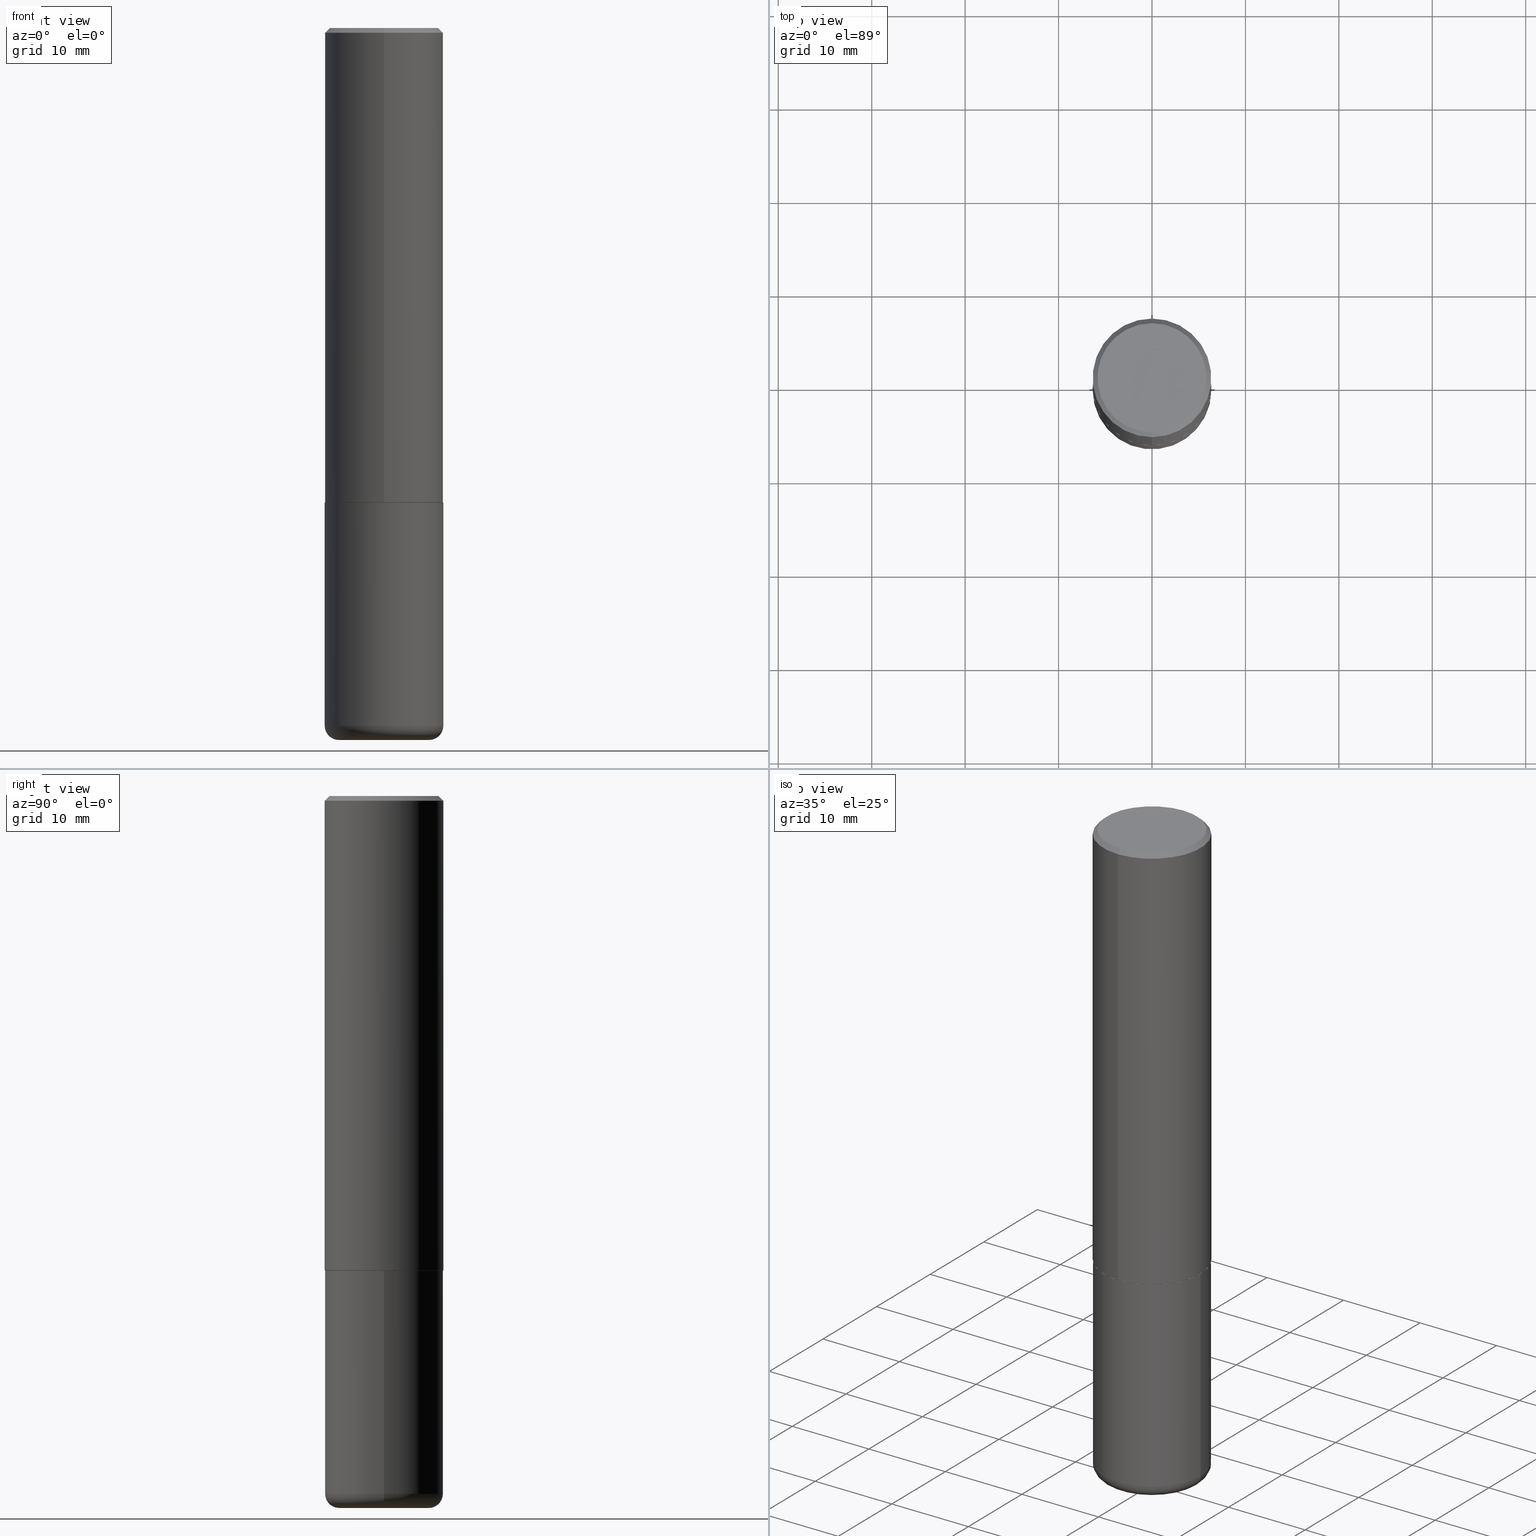
[diagram: canonical four-view strip — front | top / right | iso, engineering-drawing reading convention]
A machine part, canonical four-view strip (front | top / right | iso — engineering-drawing reading convention). The complete STEP part file that produces these views, byte-faithful:
ISO-10303-21;
HEADER;
FILE_DESCRIPTION (( 'STEP AP203' ),
    '1' );
FILE_NAME ('38268.STEP',
    '2024-03-02T20:14:29',
    ( '' ),
    ( '' ),
    'SwSTEP 2.0',
    'SolidWorks 2023',
    '' );
FILE_SCHEMA (( 'CONFIG_CONTROL_DESIGN' ));
ENDSEC;

DATA;
#1 = CYLINDRICAL_SURFACE ( 'NONE', #135, 0.2500000000000001110 ) ;
#2 = ORIENTED_EDGE ( 'NONE', *, *, #349, .F. ) ;
#3 = CARTESIAN_POINT ( 'NONE',  ( -1.745740669421567467E-15, -0.2500000000000001110, 8.732840426224690034E-16 ) ) ;
#4 = ADVANCED_BREP_SHAPE_REPRESENTATION ( '38268', ( #227, #372, #272 ), #322 ) ;
#5 = AXIS2_PLACEMENT_3D ( 'NONE', #292, #318, #284 ) ;
#6 = CARTESIAN_POINT ( 'NONE',  ( -1.646519519465166968E-15, -0.2299999999999999822, 7.995334180013181207E-16 ) ) ;
#7 = TOROIDAL_SURFACE ( 'NONE', #170, 0.1899999999999999745, 0.05999999999999968553 ) ;
#8 = EDGE_CURVE ( 'NONE', #373, #332, #209, .T. ) ;
#9 = COORDINATED_UNIVERSAL_TIME_OFFSET ( 5, 0, .BEHIND. ) ;
#10 = DIRECTION ( 'NONE',  ( 2.444313243422440590E-29, -3.493136170489874041E-15, -1.000000000000000000 ) ) ;
#11 = DIRECTION ( 'NONE',  ( 1.000000000000000000, -6.982962677686266711E-15, 0.000000000000000000 ) ) ;
#12 = DATE_TIME_ROLE ( 'creation_date' ) ;
#13 = DATE_TIME_ROLE ( 'classification_date' ) ;
#14 = AXIS2_PLACEMENT_3D ( 'NONE', #260, #281, #359 ) ;
#15 = CIRCLE ( 'NONE', #191, 0.1899999999999999745 ) ;
#16 = EDGE_LOOP ( 'NONE', ( #126, #335, #345, #102 ) ) ;
#17 = LINE ( 'NONE', #112, #90 ) ;
#18 = CARTESIAN_POINT ( 'NONE',  ( -0.2500000000000000000, 1.776356839400250465E-15, -1.229733772563726445E-29 ) ) ;
#19 = ORIENTED_EDGE ( 'NONE', *, *, #107, .F. ) ;
#20 = EDGE_LOOP ( 'NONE', ( #125, #78 ) ) ;
#21 = DIRECTION ( 'NONE',  ( 1.000000000000000000, -6.982962677686266711E-15, 4.876176775795935793E-29 ) ) ;
#22 = CONICAL_SURFACE ( 'NONE', #95, 0.2489999999999999991, 0.7853981633974141952 ) ;
#23 = ORIENTED_EDGE ( 'NONE', *, *, #375, .F. ) ;
#24 = DIRECTION ( 'NONE',  ( -2.445468806185136597E-29, 3.491481338843145583E-15, 1.000000000000000000 ) ) ;
#25 = APPLICATION_PROTOCOL_DEFINITION ( 'international standard', 'config_control_design', 1994, #42 ) ;
#26 = APPROVAL ( #400, 'UNSPECIFIED' ) ;
#27 = ORIENTED_EDGE ( 'NONE', *, *, #418, .T. ) ;
#28 = DIRECTION ( 'NONE',  ( 1.000000000000000000, -6.982962677686273021E-15, 0.000000000000000000 ) ) ;
#29 = DIRECTION ( 'NONE',  ( -2.444313243422440590E-29, 3.493136170489874041E-15, 1.000000000000000000 ) ) ;
#30 = CIRCLE ( 'NONE', #408, 0.2500000000000000000 ) ;
#31 = ORIENTED_EDGE ( 'NONE', *, *, #99, .F. ) ;
#32 = PLANE ( 'NONE',  #241 ) ;
#33 = DIRECTION ( 'NONE',  ( -6.982962677686266711E-15, -1.000000000000000000, 3.493136170489874436E-15 ) ) ;
#34 = EDGE_CURVE ( 'NONE', #225, #88, #393, .T. ) ;
#35 = ORGANIZATION ( 'UNSPECIFIED', 'UNSPECIFIED', '' ) ;
#36 = DIRECTION ( 'NONE',  ( 5.024295867787889629E-15, 0.7071067811865257013, 0.7071067811865691111 ) ) ;
#37 = VERTEX_POINT ( 'NONE', #203 ) ;
#38 = CYLINDRICAL_SURFACE ( 'NONE', #206, 0.2500000000000001110 ) ;
#39 = DIRECTION ( 'NONE',  ( -2.444313243422440590E-29, 3.493136170489874041E-15, 1.000000000000000000 ) ) ;
#40 = EDGE_CURVE ( 'NONE', #84, #383, #15, .T. ) ;
#41 = APPROVAL_ROLE ( '' ) ;
#42 = APPLICATION_CONTEXT ( 'configuration controlled 3d designs of mechanical parts and assemblies' ) ;
#43 = APPLICATION_PROTOCOL_DEFINITION ( 'international standard', 'config_control_design', 1994, #105 ) ;
#44 = DIRECTION ( 'NONE',  ( -2.444313243422440590E-29, 3.493136170489874041E-15, 1.000000000000000000 ) ) ;
#45 = PERSON_AND_ORGANIZATION_ROLE ( 'creator' ) ;
#46 = LINE ( 'NONE', #18, #376 ) ;
#47 = SECURITY_CLASSIFICATION_LEVEL ( 'unclassified' ) ;
#48 = CARTESIAN_POINT ( 'NONE',  ( 7.189678290184301639E-29, -1.026495513619884961E-14, -2.940000000000000391 ) ) ;
#49 = EDGE_LOOP ( 'NONE', ( #403, #378, #254, #77 ) ) ;
#50 = FACE_OUTER_BOUND ( 'NONE', #215, .T. ) ;
#51 = ADVANCED_FACE ( 'NONE', ( #238 ), #7, .T. ) ;
#52 = DIRECTION ( 'NONE',  ( 1.000000000000000000, -6.982962677686265133E-15, 4.883557194083112340E-29 ) ) ;
#53 = VECTOR ( 'NONE', #279, 39.37007874015748143 ) ;
#54 = EDGE_LOOP ( 'NONE', ( #211, #187, #161, #2 ) ) ;
#55 = EDGE_LOOP ( 'NONE', ( #334, #57, #402, #409 ) ) ;
#56 = DIRECTION ( 'NONE',  ( -6.982962677686265922E-15, -1.000000000000000000, 3.493136170489874041E-15 ) ) ;
#57 = ORIENTED_EDGE ( 'NONE', *, *, #40, .T. ) ;
#58 = CARTESIAN_POINT ( 'NONE',  ( 4.888626486844882862E-29, -6.986272340979750449E-15, -2.000000000000000444 ) ) ;
#59 = ADVANCED_FACE ( 'NONE', ( #182 ), #271, .T. ) ;
#60 = ORIENTED_EDGE ( 'NONE', *, *, #306, .F. ) ;
#61 = DIRECTION ( 'NONE',  ( -6.982962677686266711E-15, -1.000000000000000000, 3.491481338843145583E-15 ) ) ;
#62 = AXIS2_PLACEMENT_3D ( 'NONE', #326, #68, #319 ) ;
#63 = CARTESIAN_POINT ( 'NONE',  ( 4.890937612370273754E-29, -6.982962677686291954E-15, -2.000000000000000444 ) ) ;
#64 = ORIENTED_EDGE ( 'NONE', *, *, #349, .T. ) ;
#65 = APPROVAL ( #116, 'UNSPECIFIED' ) ;
#66 = LINE ( 'NONE', #228, #293 ) ;
#67 = ORIENTED_EDGE ( 'NONE', *, *, #331, .F. ) ;
#68 = DIRECTION ( 'NONE',  ( 7.105427357601001859E-15, 1.000000000000000000, -3.491481338843145583E-15 ) ) ;
#69 = MECHANICAL_CONTEXT ( 'NONE', #42, 'mechanical' ) ;
#70 = EDGE_CURVE ( 'NONE', #305, #198, #30, .T. ) ;
#71 =( NAMED_UNIT ( * ) PLANE_ANGLE_UNIT ( ) SI_UNIT ( $, .RADIAN. ) );
#72 = DIRECTION ( 'NONE',  ( -2.445468806185136597E-29, 3.491481338843145583E-15, 1.000000000000000000 ) ) ;
#73 = CARTESIAN_POINT ( 'NONE',  ( 4.888626486844882862E-29, -6.986272340979750449E-15, -2.000000000000000444 ) ) ;
#74 = VECTOR ( 'NONE', #139, 39.37007874015748143 ) ;
#75 = PERSON_AND_ORGANIZATION_ROLE ( 'design_supplier' ) ;
#76 = ADVANCED_FACE ( 'NONE', ( #109 ), #145, .T. ) ;
#77 = ORIENTED_EDGE ( 'NONE', *, *, #148, .F. ) ;
#78 = ORIENTED_EDGE ( 'NONE', *, *, #40, .F. ) ;
#79 = CALENDAR_DATE ( 2024, 2, 3 ) ;
#80 = DESIGN_CONTEXT ( 'detailed design', #105, 'design' ) ;
#81 = PERSON_AND_ORGANIZATION_ROLE ( 'classification_officer' ) ;
#82 = AXIS2_PLACEMENT_3D ( 'NONE', #283, #387, #344 ) ;
#83 = AXIS2_PLACEMENT_3D ( 'NONE', #384, #324, #328 ) ;
#84 = VERTEX_POINT ( 'NONE', #89 ) ;
#85 = EDGE_CURVE ( 'NONE', #37, #149, #250, .T. ) ;
#86 = CARTESIAN_POINT ( 'NONE',  ( 0.2499999999999998335, -1.201069580562041471E-14, -2.940000000000000391 ) ) ;
#87 = ORIENTED_EDGE ( 'NONE', *, *, #148, .T. ) ;
#88 = VERTEX_POINT ( 'NONE', #86 ) ;
#89 = CARTESIAN_POINT ( 'NONE',  ( -0.1899999999999999745, -8.806505557691924342E-15, -2.999999999999999556 ) ) ;
#90 = VECTOR ( 'NONE', #274, 39.37007874015748143 ) ;
#91 = DIRECTION ( 'NONE',  ( 4.937700262164544887E-15, 0.7071067811865446862, -0.7071067811865503483 ) ) ;
#92 = CARTESIAN_POINT ( 'NONE',  ( -1.715124499442882299E-15, -0.2500000000000000555, -0.01999999999999918163 ) ) ;
#93 = ADVANCED_FACE ( 'NONE', ( #240 ), #269, .T. ) ;
#94 = EDGE_LOOP ( 'NONE', ( #151, #394, #31, #118 ) ) ;
#95 = AXIS2_PLACEMENT_3D ( 'NONE', #73, #141, #320 ) ;
#96 = ORIENTED_EDGE ( 'NONE', *, *, #401, .F. ) ;
#97 = DIRECTION ( 'NONE',  ( -6.982962677686265133E-15, -1.000000000000000000, 3.291383124896702687E-15 ) ) ;
#98 = CARTESIAN_POINT ( 'NONE',  ( 0.000000000000000000, 0.000000000000000000, 0.000000000000000000 ) ) ;
#99 = EDGE_CURVE ( 'NONE', #169, #311, #348, .T. ) ;
#100 = AXIS2_PLACEMENT_3D ( 'NONE', #199, #138, #230 ) ;
#101 = LENGTH_MEASURE_WITH_UNIT ( LENGTH_MEASURE( 0.02539999999999999897 ), #351 );
#102 = ORIENTED_EDGE ( 'NONE', *, *, #70, .F. ) ;
#103 = PERSON_AND_ORGANIZATION ( #193, #35 ) ;
#104 = CALENDAR_DATE ( 2024, 2, 3 ) ;
#105 = APPLICATION_CONTEXT ( 'configuration controlled 3d designs of mechanical parts and assemblies' ) ;
#106 = AXIS2_PLACEMENT_3D ( 'NONE', #226, #195, #365 ) ;
#107 = EDGE_CURVE ( 'NONE', #311, #169, #300, .T. ) ;
#108 = DIRECTION ( 'NONE',  ( -6.982962677686265922E-15, -1.000000000000000000, 3.278217592397112312E-15 ) ) ;
#109 = FACE_OUTER_BOUND ( 'NONE', #55, .T. ) ;
#110 = ORIENTED_EDGE ( 'NONE', *, *, #85, .T. ) ;
#111 = APPROVAL_DATE_TIME ( #142, #65 ) ;
#112 = CARTESIAN_POINT ( 'NONE',  ( 0.2500000000000000000, -1.745740669421566678E-15, 1.219044193948983948E-29 ) ) ;
#113 = FACE_OUTER_BOUND ( 'NONE', #239, .T. ) ;
#114 = CC_DESIGN_PERSON_AND_ORGANIZATION_ASSIGNMENT ( #267, #81, ( #415 ) ) ;
#115 = AXIS2_PLACEMENT_3D ( 'NONE', #253, #29, #56 ) ;
#116 = APPROVAL_STATUS ( 'not_yet_approved' ) ;
#117 = AXIS2_PLACEMENT_3D ( 'NONE', #134, #61, #389 ) ;
#118 = ORIENTED_EDGE ( 'NONE', *, *, #347, .F. ) ;
#119 = CARTESIAN_POINT ( 'NONE',  ( 1.745740669421566875E-15, 0.2499999999999999167, -0.02000000000000093023 ) ) ;
#120 = PLANE ( 'NONE',  #14 ) ;
#121 = CARTESIAN_POINT ( 'NONE',  ( 0.2500000000000000000, -8.728703347107858632E-15, -2.000000000000000444 ) ) ;
#122 = CIRCLE ( 'NONE', #5, 0.2299999999999999822 ) ;
#123 = DIRECTION ( 'NONE',  ( 0.000000000000000000, 0.000000000000000000, 1.000000000000000000 ) ) ;
#124 = EDGE_LOOP ( 'NONE', ( #210, #361 ) ) ;
#125 = ORIENTED_EDGE ( 'NONE', *, *, #395, .F. ) ;
#126 = ORIENTED_EDGE ( 'NONE', *, *, #175, .F. ) ;
#127 = ORIENTED_EDGE ( 'NONE', *, *, #163, .F. ) ;
#128 = DIRECTION ( 'NONE',  ( 2.438088387897960049E-29, -3.491481338843145188E-15, -1.000000000000000000 ) ) ;
#129 = AXIS2_PLACEMENT_3D ( 'NONE', #222, #72, #413 ) ;
#130 = CC_DESIGN_APPROVAL ( #26, ( #415 ) ) ;
#131 = LINE ( 'NONE', #3, #74 ) ;
#132 = CARTESIAN_POINT ( 'NONE',  ( 1.336053039146161825E-28, -1.847555615484388985E-15, -2.999999999999999556 ) ) ;
#133 = EDGE_CURVE ( 'NONE', #88, #198, #17, .T. ) ;
#134 = CARTESIAN_POINT ( 'NONE',  ( 0.1899999999999999745, -1.159171804495923808E-14, -2.940000000000000391 ) ) ;
#135 = AXIS2_PLACEMENT_3D ( 'NONE', #314, #39, #288 ) ;
#136 = DIRECTION ( 'NONE',  ( -2.445468806185136597E-29, 3.491481338843145583E-15, 1.000000000000000000 ) ) ;
#137 = AXIS2_PLACEMENT_3D ( 'NONE', #390, #346, #358 ) ;
#138 = DIRECTION ( 'NONE',  ( -2.444313243422440590E-29, 3.493136170489874041E-15, 1.000000000000000000 ) ) ;
#139 = DIRECTION ( 'NONE',  ( -2.444313243422440590E-29, 3.493136170489874041E-15, 1.000000000000000000 ) ) ;
#140 = PERSON_AND_ORGANIZATION ( #193, #35 ) ;
#141 = DIRECTION ( 'NONE',  ( -2.444313243422440590E-29, 3.493136170489874041E-15, 1.000000000000000000 ) ) ;
#142 = DATE_AND_TIME ( #268, #286 ) ;
#143 = CONICAL_SURFACE ( 'NONE', #202, 0.2500000000000000000, 0.7853981633974477239 ) ;
#144 = COORDINATED_UNIVERSAL_TIME_OFFSET ( 5, 0, .BEHIND. ) ;
#145 = TOROIDAL_SURFACE ( 'NONE', #379, 0.1899999999999999745, 0.05999999999999968553 ) ;
#146 = DIRECTION ( 'NONE',  ( 1.000000000000000000, -6.982962677686266711E-15, 0.000000000000000000 ) ) ;
#147 = APPROVAL_STATUS ( 'not_yet_approved' ) ;
#148 = EDGE_CURVE ( 'NONE', #332, #207, #244, .T. ) ;
#149 = VERTEX_POINT ( 'NONE', #404 ) ;
#150 = ORIENTED_EDGE ( 'NONE', *, *, #133, .F. ) ;
#151 = ORIENTED_EDGE ( 'NONE', *, *, #251, .T. ) ;
#152 = PRODUCT_DEFINITION_FORMATION_WITH_SPECIFIED_SOURCE ( 'ANY', '', #156, .NOT_KNOWN. ) ;
#153 = APPROVAL_PERSON_ORGANIZATION ( #236, #65, #41 ) ;
#154 = ORIENTED_EDGE ( 'NONE', *, *, #336, .F. ) ;
#155 = ORIENTED_EDGE ( 'NONE', *, *, #8, .T. ) ;
#156 = PRODUCT ( '38268', '38268', '', ( #69 ) ) ;
#157 = APPROVAL ( #147, 'UNSPECIFIED' ) ;
#158 = DIRECTION ( 'NONE',  ( -2.444313243422440590E-29, 3.493136170489874041E-15, 1.000000000000000000 ) ) ;
#159 = CIRCLE ( 'NONE', #256, 0.2489999999999999991 ) ;
#160 = CARTESIAN_POINT ( 'NONE',  ( 4.888626486844894878E-31, -6.986272340979767558E-17, -0.02000000000000005593 ) ) ;
#161 = ORIENTED_EDGE ( 'NONE', *, *, #331, .T. ) ;
#162 = DIRECTION ( 'NONE',  ( 1.000000000000000000, -6.982962677686266711E-15, 4.876176775795935793E-29 ) ) ;
#163 = EDGE_CURVE ( 'NONE', #417, #207, #391, .T. ) ;
#164 = CARTESIAN_POINT ( 'NONE',  ( 4.888626486844882862E-29, -6.986272340979750449E-15, -2.000000000000000444 ) ) ;
#165 = DIRECTION ( 'NONE',  ( 6.982962677686265922E-15, 1.000000000000000000, -3.500180241882337261E-15 ) ) ;
#166 = DIRECTION ( 'NONE',  ( -1.000000000000000000, 6.982962677686265922E-15, -4.876176775795935793E-29 ) ) ;
#167 = ADVANCED_FACE ( 'NONE', ( #221 ), #287, .T. ) ;
#168 =( NAMED_UNIT ( * ) SI_UNIT ( $, .STERADIAN. ) SOLID_ANGLE_UNIT ( ) );
#169 = VERTEX_POINT ( 'NONE', #297 ) ;
#170 = AXIS2_PLACEMENT_3D ( 'NONE', #48, #410, #52 ) ;
#171 = AXIS2_PLACEMENT_3D ( 'NONE', #186, #340, #162 ) ;
#172 = CALENDAR_DATE ( 2024, 2, 3 ) ;
#173 = DATE_AND_TIME ( #172, #338 ) ;
#174 = AXIS2_PLACEMENT_3D ( 'NONE', #164, #317, #97 ) ;
#175 = EDGE_CURVE ( 'NONE', #225, #305, #46, .T. ) ;
#176 = APPROVAL_ROLE ( '' ) ;
#177 = UNCERTAINTY_MEASURE_WITH_UNIT (LENGTH_MEASURE( 1.000000000000000082E-05 ), #224, 'distance_accuracy_value', 'NONE');
#178 = CARTESIAN_POINT ( 'NONE',  ( -1.715124499442882299E-15, -0.2500000000000000555, -0.01999999999999918163 ) ) ;
#179 = CYLINDRICAL_SURFACE ( 'NONE', #171, 0.2500000000000000000 ) ;
#180 = CARTESIAN_POINT ( 'NONE',  ( 4.890937612370273754E-29, -6.982962677686291954E-15, -2.000000000000000444 ) ) ;
#181 = CARTESIAN_POINT ( 'NONE',  ( 4.890937612370273754E-29, -6.982962677686291954E-15, -2.000000000000000444 ) ) ;
#182 = FACE_OUTER_BOUND ( 'NONE', #49, .T. ) ;
#183 = CIRCLE ( 'NONE', #117, 0.05999999999999966471 ) ;
#184 = ADVANCED_FACE ( 'NONE', ( #280 ), #143, .T. ) ;
#185 = DIRECTION ( 'NONE',  ( -2.444313243422440590E-29, 3.493136170489874041E-15, 1.000000000000000000 ) ) ;
#186 = CARTESIAN_POINT ( 'NONE',  ( 0.000000000000000000, 0.000000000000000000, 0.000000000000000000 ) ) ;
#187 = ORIENTED_EDGE ( 'NONE', *, *, #107, .T. ) ;
#188 = LINE ( 'NONE', #289, #53 ) ;
#189 = CC_DESIGN_DATE_AND_TIME_ASSIGNMENT ( #264, #12, ( #204 ) ) ;
#190 = LOCAL_TIME ( 15, 14, 29.00000000000000000, #144 ) ;
#191 = AXIS2_PLACEMENT_3D ( 'NONE', #412, #136, #353 ) ;
#192 = EDGE_CURVE ( 'NONE', #332, #373, #122, .T. ) ;
#193 = PERSON ( 'UNSPECIFIED', 'UNSPECIFIED', 'UNSPECIFIED', ('UNSPECIFIED'), ('UNSPECIFIED'), ('UNSPECIFIED') ) ;
#194 = DIRECTION ( 'NONE',  ( -4.937700262164378437E-15, -0.7071067811865208164, 0.7071067811865739960 ) ) ;
#195 = DIRECTION ( 'NONE',  ( 2.444313243422440310E-29, -3.493136170489874041E-15, -1.000000000000000000 ) ) ;
#196 = CARTESIAN_POINT ( 'NONE',  ( 1.776356839400276103E-15, 0.2499999999999933109, -1.999000000000000998 ) ) ;
#197 = DIRECTION ( 'NONE',  ( 1.000000000000000000, 0.000000000000000000, 0.000000000000000000 ) ) ;
#198 = VERTEX_POINT ( 'NONE', #121 ) ;
#199 = CARTESIAN_POINT ( 'NONE',  ( 4.888626486844894878E-31, -6.986272340979767558E-17, -0.02000000000000005593 ) ) ;
#200 = FACE_OUTER_BOUND ( 'NONE', #94, .T. ) ;
#201 = CC_DESIGN_PERSON_AND_ORGANIZATION_ASSIGNMENT ( #360, #75, ( #152 ) ) ;
#202 = AXIS2_PLACEMENT_3D ( 'NONE', #294, #10, #165 ) ;
#203 = CARTESIAN_POINT ( 'NONE',  ( 1.772804125721499659E-15, 0.2489999999999930325, -2.000000000000001332 ) ) ;
#204 = PRODUCT_DEFINITION ( 'UNKNOWN', '', #152, #80 ) ;
#205 = PERSON_AND_ORGANIZATION ( #193, #35 ) ;
#206 = AXIS2_PLACEMENT_3D ( 'NONE', #374, #276, #33 ) ;
#207 = VERTEX_POINT ( 'NONE', #249 ) ;
#208 = APPROVAL_DATE_TIME ( #173, #26 ) ;
#209 = CIRCLE ( 'NONE', #115, 0.2299999999999999822 ) ;
#210 = ORIENTED_EDGE ( 'NONE', *, *, #217, .T. ) ;
#211 = ORIENTED_EDGE ( 'NONE', *, *, #418, .F. ) ;
#212 = ORIENTED_EDGE ( 'NONE', *, *, #175, .T. ) ;
#213 = ADVANCED_FACE ( 'NONE', ( #381 ), #32, .F. ) ;
#214 = VECTOR ( 'NONE', #194, 39.37007874015748854 ) ;
#215 = EDGE_LOOP ( 'NONE', ( #282, #155 ) ) ;
#216 = DIRECTION ( 'NONE',  ( -6.982962677686265133E-15, -1.000000000000000000, 3.291383124896702687E-15 ) ) ;
#217 = EDGE_CURVE ( 'NONE', #198, #305, #329, .T. ) ;
#218 = EDGE_LOOP ( 'NONE', ( #60, #364, #87, #64 ) ) ;
#219 = AXIS2_PLACEMENT_3D ( 'NONE', #303, #406, #21 ) ;
#220 = CARTESIAN_POINT ( 'NONE',  ( -0.2500000000000000000, -6.847602067542319531E-15, -2.000000000000000444 ) ) ;
#221 = FACE_OUTER_BOUND ( 'NONE', #20, .T. ) ;
#222 = CARTESIAN_POINT ( 'NONE',  ( 7.189678290184301639E-29, -1.026495513619884961E-14, -2.940000000000000391 ) ) ;
#223 = AXIS2_PLACEMENT_3D ( 'NONE', #132, #388, #350 ) ;
#224 =( CONVERSION_BASED_UNIT ( 'INCH', #101 ) LENGTH_UNIT ( ) NAMED_UNIT ( #245 ) );
#225 = VERTEX_POINT ( 'NONE', #370 ) ;
#226 = CARTESIAN_POINT ( 'NONE',  ( 1.606081415867841067E-15, 0.2299999999999999822, -8.053652698183474938E-16 ) ) ;
#227 = MANIFOLD_SOLID_BREP ( 'Body-Move/Copy2[1]', #291 ) ;
#228 = CARTESIAN_POINT ( 'NONE',  ( 1.769251412042697971E-15, 0.2489999999999930047, -2.000000000000001332 ) ) ;
#229 = ORIENTED_EDGE ( 'NONE', *, *, #401, .T. ) ;
#230 = DIRECTION ( 'NONE',  ( -6.982962677686265922E-15, -1.000000000000000000, 3.500180241882337261E-15 ) ) ;
#231 = SHAPE_DEFINITION_REPRESENTATION ( #247, #4 ) ;
#232 = VECTOR ( 'NONE', #91, 39.37007874015748143 ) ;
#233 = CC_DESIGN_APPROVAL ( #65, ( #152 ) ) ;
#234 = APPROVAL_ROLE ( '' ) ;
#235 = ADVANCED_FACE ( 'NONE', ( #200 ), #22, .T. ) ;
#236 = PERSON_AND_ORGANIZATION ( #193, #35 ) ;
#237 = ADVANCED_FACE ( 'NONE', ( #352 ), #38, .T. ) ;
#238 = FACE_OUTER_BOUND ( 'NONE', #298, .T. ) ;
#239 = EDGE_LOOP ( 'NONE', ( #342, #312 ) ) ;
#240 = FACE_OUTER_BOUND ( 'NONE', #313, .T. ) ;
#241 = AXIS2_PLACEMENT_3D ( 'NONE', #63, #128, #166 ) ;
#242 = DATE_AND_TIME ( #104, #357 ) ;
#243 = AXIS2_PLACEMENT_3D ( 'NONE', #248, #330, #333 ) ;
#244 = LINE ( 'NONE', #119, #232 ) ;
#245 = DIMENSIONAL_EXPONENTS ( 1.000000000000000000, 0.000000000000000000, 0.000000000000000000, 0.000000000000000000, 0.000000000000000000, 0.000000000000000000, 0.000000000000000000 ) ;
#246 = CC_DESIGN_PERSON_AND_ORGANIZATION_ASSIGNMENT ( #355, #45, ( #152 ) ) ;
#247 = PRODUCT_DEFINITION_SHAPE ( 'NONE', 'NONE',  #204 ) ;
#248 = CARTESIAN_POINT ( 'NONE',  ( 4.888626486844894878E-31, -6.986272340979767558E-17, -0.02000000000000005593 ) ) ;
#249 = CARTESIAN_POINT ( 'NONE',  ( 1.745740669421566875E-15, 0.2499999999999999167, -0.02000000000000093023 ) ) ;
#250 = CIRCLE ( 'NONE', #83, 0.2489999999999999991 ) ;
#251 = EDGE_CURVE ( 'NONE', #149, #37, #159, .T. ) ;
#252 = LINE ( 'NONE', #259, #214 ) ;
#253 = CARTESIAN_POINT ( 'NONE',  ( 9.503248420027907092E-47, -1.358096834866801996E-32, -3.887901211352844228E-18 ) ) ;
#254 = ORIENTED_EDGE ( 'NONE', *, *, #163, .T. ) ;
#255 = DIRECTION ( 'NONE',  ( 1.000000000000000000, -6.982962677686265133E-15, 4.883557194083112340E-29 ) ) ;
#256 = AXIS2_PLACEMENT_3D ( 'NONE', #58, #185, #216 ) ;
#257 = ORIENTED_EDGE ( 'NONE', *, *, #347, .T. ) ;
#258 = CC_DESIGN_PERSON_AND_ORGANIZATION_ASSIGNMENT ( #103, #366, ( #156 ) ) ;
#259 = CARTESIAN_POINT ( 'NONE',  ( -1.738757706743831360E-15, -0.2490000000000069935, -1.999999999999999778 ) ) ;
#260 = CARTESIAN_POINT ( 'NONE',  ( 4.888626486844882862E-29, -6.986272340979750449E-15, -2.000000000000000444 ) ) ;
#261 = LINE ( 'NONE', #178, #399 ) ;
#262 = ADVANCED_FACE ( 'NONE', ( #380 ), #179, .T. ) ;
#263 = CARTESIAN_POINT ( 'NONE',  ( 0.1899999999999999745, -1.180120692528982640E-14, -2.999999999999999556 ) ) ;
#264 = DATE_AND_TIME ( #79, #190 ) ;
#265 = COORDINATED_UNIVERSAL_TIME_OFFSET ( 5, 0, .BEHIND. ) ;
#266 = APPROVAL_PERSON_ORGANIZATION ( #140, #157, #176 ) ;
#267 = PERSON_AND_ORGANIZATION ( #193, #35 ) ;
#268 = CALENDAR_DATE ( 2024, 2, 3 ) ;
#269 = CYLINDRICAL_SURFACE ( 'NONE', #219, 0.2500000000000000000 ) ;
#270 = ADVANCED_FACE ( 'NONE', ( #113 ), #120, .F. ) ;
#271 = CONICAL_SURFACE ( 'NONE', #243, 0.2500000000000000000, 0.7853981633974477239 ) ;
#272 = AXIS2_PLACEMENT_3D ( 'NONE', #98, #123, #197 ) ;
#273 = DIRECTION ( 'NONE',  ( -2.445468806185136597E-29, 3.491481338843145583E-15, 1.000000000000000000 ) ) ;
#274 = DIRECTION ( 'NONE',  ( -2.445468806185136877E-29, 3.491481338843145188E-15, 1.000000000000000000 ) ) ;
#275 = FACE_OUTER_BOUND ( 'NONE', #310, .T. ) ;
#276 = DIRECTION ( 'NONE',  ( -2.444313243422440590E-29, 3.493136170489874041E-15, 1.000000000000000000 ) ) ;
#277 = FACE_OUTER_BOUND ( 'NONE', #54, .T. ) ;
#278 = AXIS2_PLACEMENT_3D ( 'NONE', #181, #398, #11 ) ;
#279 = DIRECTION ( 'NONE',  ( -2.444313243422440590E-29, 3.493136170489874041E-15, 1.000000000000000000 ) ) ;
#280 = FACE_OUTER_BOUND ( 'NONE', #218, .T. ) ;
#281 = DIRECTION ( 'NONE',  ( -2.444313243422440310E-29, 3.493136170489874041E-15, 1.000000000000000000 ) ) ;
#282 = ORIENTED_EDGE ( 'NONE', *, *, #192, .T. ) ;
#283 = CARTESIAN_POINT ( 'NONE',  ( 4.886182173601459090E-29, -6.982779204809258546E-15, -1.999000000000000110 ) ) ;
#284 = DIRECTION ( 'NONE',  ( -6.982962677686265922E-15, -1.000000000000000000, 3.493136170489874041E-15 ) ) ;
#285 = CC_DESIGN_APPROVAL ( #157, ( #204 ) ) ;
#286 = LOCAL_TIME ( 15, 14, 29.00000000000000000, #396 ) ;
#287 = PLANE ( 'NONE',  #223 ) ;
#288 = DIRECTION ( 'NONE',  ( -6.982962677686266711E-15, -1.000000000000000000, 3.493136170489874436E-15 ) ) ;
#289 = CARTESIAN_POINT ( 'NONE',  ( 1.776356839400251254E-15, 0.2500000000000001110, -8.732840426224690034E-16 ) ) ;
#290 = EDGE_CURVE ( 'NONE', #84, #225, #337, .T. ) ;
#291 = CLOSED_SHELL ( 'NONE', ( #93, #51, #213, #262, #76, #167 ) ) ;
#292 = CARTESIAN_POINT ( 'NONE',  ( 9.503248420027907092E-47, -1.358096834866801996E-32, -3.887901211352844228E-18 ) ) ;
#293 = VECTOR ( 'NONE', #36, 39.37007874015748854 ) ;
#294 = CARTESIAN_POINT ( 'NONE',  ( 4.888626486844894878E-31, -6.986272340979767558E-17, -0.02000000000000005593 ) ) ;
#295 = CLOSED_SHELL ( 'NONE', ( #235, #237, #59, #184, #363, #327, #270, #316 ) ) ;
#296 = DIRECTION ( 'NONE',  ( -4.851104656540961119E-15, -0.7071067811865495711, -0.7071067811865454633 ) ) ;
#297 = CARTESIAN_POINT ( 'NONE',  ( -1.745740669421519543E-15, -0.2500000000000072164, -1.998999999999999444 ) ) ;
#298 = EDGE_LOOP ( 'NONE', ( #339, #301, #96, #23 ) ) ;
#299 = CC_DESIGN_DATE_AND_TIME_ASSIGNMENT ( #242, #13, ( #415 ) ) ;
#300 = CIRCLE ( 'NONE', #82, 0.2500000000000002776 ) ;
#301 = ORIENTED_EDGE ( 'NONE', *, *, #290, .T. ) ;
#302 = DATE_AND_TIME ( #362, #385 ) ;
#303 = CARTESIAN_POINT ( 'NONE',  ( 0.000000000000000000, 0.000000000000000000, 0.000000000000000000 ) ) ;
#304 = CIRCLE ( 'NONE', #309, 0.2500000000000000000 ) ;
#305 = VERTEX_POINT ( 'NONE', #220 ) ;
#306 = EDGE_CURVE ( 'NONE', #373, #417, #261, .T. ) ;
#307 = PLANE ( 'NONE',  #106 ) ;
#308 = DIRECTION ( 'NONE',  ( -6.982962677686265922E-15, -1.000000000000000000, 3.500180241882337261E-15 ) ) ;
#309 = AXIS2_PLACEMENT_3D ( 'NONE', #160, #158, #308 ) ;
#310 = EDGE_LOOP ( 'NONE', ( #154, #110, #257, #19 ) ) ;
#311 = VERTEX_POINT ( 'NONE', #196 ) ;
#312 = ORIENTED_EDGE ( 'NONE', *, *, #85, .F. ) ;
#313 = EDGE_LOOP ( 'NONE', ( #229, #212, #371, #150 ) ) ;
#314 = CARTESIAN_POINT ( 'NONE',  ( 0.000000000000000000, 0.000000000000000000, 0.000000000000000000 ) ) ;
#315 = CC_DESIGN_SECURITY_CLASSIFICATION ( #415, ( #152 ) ) ;
#316 = ADVANCED_FACE ( 'NONE', ( #50 ), #307, .F. ) ;
#317 = DIRECTION ( 'NONE',  ( -2.444313243422440590E-29, 3.493136170489874041E-15, 1.000000000000000000 ) ) ;
#318 = DIRECTION ( 'NONE',  ( -2.444313243422440590E-29, 3.493136170489874041E-15, 1.000000000000000000 ) ) ;
#319 = DIRECTION ( 'NONE',  ( -1.000000000000000000, 7.105427357600997914E-15, 0.000000000000000000 ) ) ;
#320 = DIRECTION ( 'NONE',  ( -6.982962677686265133E-15, -1.000000000000000000, 3.291383124896702687E-15 ) ) ;
#321 = CIRCLE ( 'NONE', #367, 0.1899999999999999745 ) ;
#322 =( GEOMETRIC_REPRESENTATION_CONTEXT ( 3 ) GLOBAL_UNCERTAINTY_ASSIGNED_CONTEXT ( ( #177 ) ) GLOBAL_UNIT_ASSIGNED_CONTEXT ( ( #224, #71, #168 ) ) REPRESENTATION_CONTEXT ( 'NONE', 'WORKASPACE' ) );
#323 = AXIS2_PLACEMENT_3D ( 'NONE', #341, #44, #108 ) ;
#324 = DIRECTION ( 'NONE',  ( -2.444313243422440590E-29, 3.493136170489874041E-15, 1.000000000000000000 ) ) ;
#325 = PERSON_AND_ORGANIZATION_ROLE ( 'creator' ) ;
#326 = CARTESIAN_POINT ( 'NONE',  ( -0.1899999999999999745, -8.914923938254659640E-15, -2.940000000000000391 ) ) ;
#327 = ADVANCED_FACE ( 'NONE', ( #275 ), #414, .T. ) ;
#328 = DIRECTION ( 'NONE',  ( -6.982962677686265133E-15, -1.000000000000000000, 3.291383124896702687E-15 ) ) ;
#329 = CIRCLE ( 'NONE', #278, 0.2500000000000000000 ) ;
#330 = DIRECTION ( 'NONE',  ( 2.444313243422440590E-29, -3.493136170489874041E-15, -1.000000000000000000 ) ) ;
#331 = EDGE_CURVE ( 'NONE', #169, #417, #131, .T. ) ;
#332 = VERTEX_POINT ( 'NONE', #354 ) ;
#333 = DIRECTION ( 'NONE',  ( 6.982962677686265922E-15, 1.000000000000000000, -3.500180241882337261E-15 ) ) ;
#334 = ORIENTED_EDGE ( 'NONE', *, *, #290, .F. ) ;
#335 = ORIENTED_EDGE ( 'NONE', *, *, #34, .T. ) ;
#336 = EDGE_CURVE ( 'NONE', #37, #311, #66, .T. ) ;
#337 = CIRCLE ( 'NONE', #62, 0.05999999999999966471 ) ;
#338 = LOCAL_TIME ( 15, 14, 29.00000000000000000, #9 ) ;
#339 = ORIENTED_EDGE ( 'NONE', *, *, #395, .T. ) ;
#340 = DIRECTION ( 'NONE',  ( -2.445468806185136597E-29, 3.491481338843145583E-15, 1.000000000000000000 ) ) ;
#341 = CARTESIAN_POINT ( 'NONE',  ( 4.886182173601459090E-29, -6.982779204809258546E-15, -1.999000000000000110 ) ) ;
#342 = ORIENTED_EDGE ( 'NONE', *, *, #251, .F. ) ;
#343 = DIRECTION ( 'NONE',  ( -2.445468806185136597E-29, 3.491481338843145583E-15, 1.000000000000000000 ) ) ;
#344 = DIRECTION ( 'NONE',  ( -6.982962677686265922E-15, -1.000000000000000000, 3.278217592397112312E-15 ) ) ;
#345 = ORIENTED_EDGE ( 'NONE', *, *, #133, .T. ) ;
#346 = DIRECTION ( 'NONE',  ( -2.445468806185136597E-29, 3.491481338843145583E-15, 1.000000000000000000 ) ) ;
#347 = EDGE_CURVE ( 'NONE', #149, #169, #252, .T. ) ;
#348 = CIRCLE ( 'NONE', #323, 0.2500000000000002776 ) ;
#349 = EDGE_CURVE ( 'NONE', #207, #417, #304, .T. ) ;
#350 = DIRECTION ( 'NONE',  ( -1.000000000000000000, 6.982962677686265922E-15, -4.876176775795935793E-29 ) ) ;
#351 =( LENGTH_UNIT ( ) NAMED_UNIT ( * ) SI_UNIT ( $, .METRE. ) );
#352 = FACE_OUTER_BOUND ( 'NONE', #411, .T. ) ;
#353 = DIRECTION ( 'NONE',  ( 1.000000000000000000, -6.982962677686273021E-15, 0.000000000000000000 ) ) ;
#354 = CARTESIAN_POINT ( 'NONE',  ( 1.675911042644703774E-15, 0.2299999999999999822, -8.073092204240238200E-16 ) ) ;
#355 = PERSON_AND_ORGANIZATION ( #193, #35 ) ;
#356 = CIRCLE ( 'NONE', #129, 0.2500000000000000000 ) ;
#357 = LOCAL_TIME ( 15, 14, 29.00000000000000000, #369 ) ;
#358 = DIRECTION ( 'NONE',  ( 1.000000000000000000, -6.982962677686262766E-15, 0.000000000000000000 ) ) ;
#359 = DIRECTION ( 'NONE',  ( -6.982962677686265922E-15, -1.000000000000000000, 3.493136170489874041E-15 ) ) ;
#360 = PERSON_AND_ORGANIZATION ( #193, #35 ) ;
#361 = ORIENTED_EDGE ( 'NONE', *, *, #70, .T. ) ;
#362 = CALENDAR_DATE ( 2024, 2, 3 ) ;
#363 = ADVANCED_FACE ( 'NONE', ( #277 ), #1, .T. ) ;
#364 = ORIENTED_EDGE ( 'NONE', *, *, #192, .F. ) ;
#365 = DIRECTION ( 'NONE',  ( 6.982962677686265922E-15, 1.000000000000000000, -3.493136170489874041E-15 ) ) ;
#366 = PERSON_AND_ORGANIZATION_ROLE ( 'design_owner' ) ;
#367 = AXIS2_PLACEMENT_3D ( 'NONE', #392, #343, #28 ) ;
#368 = ORIENTED_EDGE ( 'NONE', *, *, #99, .T. ) ;
#369 = COORDINATED_UNIVERSAL_TIME_OFFSET ( 5, 0, .BEHIND. ) ;
#370 = CARTESIAN_POINT ( 'NONE',  ( -0.2499999999999998335, -8.488598296798600727E-15, -2.940000000000000391 ) ) ;
#371 = ORIENTED_EDGE ( 'NONE', *, *, #217, .F. ) ;
#372 = MANIFOLD_SOLID_BREP ( 'Body-Move/Copy2[2]', #295 ) ;
#373 = VERTEX_POINT ( 'NONE', #6 ) ;
#374 = CARTESIAN_POINT ( 'NONE',  ( 0.000000000000000000, 0.000000000000000000, 0.000000000000000000 ) ) ;
#375 = EDGE_CURVE ( 'NONE', #383, #88, #183, .T. ) ;
#376 = VECTOR ( 'NONE', #407, 39.37007874015748143 ) ;
#377 = CARTESIAN_POINT ( 'NONE',  ( 7.189678290184301639E-29, -1.026495513619884961E-14, -2.940000000000000391 ) ) ;
#378 = ORIENTED_EDGE ( 'NONE', *, *, #306, .T. ) ;
#379 = AXIS2_PLACEMENT_3D ( 'NONE', #377, #24, #255 ) ;
#380 = FACE_OUTER_BOUND ( 'NONE', #16, .T. ) ;
#381 = FACE_OUTER_BOUND ( 'NONE', #124, .T. ) ;
#382 = PRODUCT_RELATED_PRODUCT_CATEGORY ( 'detail', '', ( #156 ) ) ;
#383 = VERTEX_POINT ( 'NONE', #263 ) ;
#384 = CARTESIAN_POINT ( 'NONE',  ( 4.888626486844882862E-29, -6.986272340979750449E-15, -2.000000000000000444 ) ) ;
#385 = LOCAL_TIME ( 15, 14, 29.00000000000000000, #265 ) ;
#386 = APPROVAL_PERSON_ORGANIZATION ( #397, #26, #234 ) ;
#387 = DIRECTION ( 'NONE',  ( -2.444313243422440590E-29, 3.493136170489874041E-15, 1.000000000000000000 ) ) ;
#388 = DIRECTION ( 'NONE',  ( 2.438088387897960049E-29, -3.491481338843145188E-15, -1.000000000000000000 ) ) ;
#389 = DIRECTION ( 'NONE',  ( 1.000000000000000000, -6.982962677686275388E-15, 0.000000000000000000 ) ) ;
#390 = CARTESIAN_POINT ( 'NONE',  ( 7.189678290184301639E-29, -1.026495513619884961E-14, -2.940000000000000391 ) ) ;
#391 = CIRCLE ( 'NONE', #100, 0.2500000000000000000 ) ;
#392 = CARTESIAN_POINT ( 'NONE',  ( 7.336406418555408669E-29, -1.047444401652943478E-14, -2.999999999999999556 ) ) ;
#393 = CIRCLE ( 'NONE', #137, 0.2500000000000000000 ) ;
#394 = ORIENTED_EDGE ( 'NONE', *, *, #336, .T. ) ;
#395 = EDGE_CURVE ( 'NONE', #383, #84, #321, .T. ) ;
#396 = COORDINATED_UNIVERSAL_TIME_OFFSET ( 5, 0, .BEHIND. ) ;
#397 = PERSON_AND_ORGANIZATION ( #193, #35 ) ;
#398 = DIRECTION ( 'NONE',  ( -2.445468806185136597E-29, 3.491481338843145583E-15, 1.000000000000000000 ) ) ;
#399 = VECTOR ( 'NONE', #296, 39.37007874015748143 ) ;
#400 = APPROVAL_STATUS ( 'not_yet_approved' ) ;
#401 = EDGE_CURVE ( 'NONE', #88, #225, #356, .T. ) ;
#402 = ORIENTED_EDGE ( 'NONE', *, *, #375, .T. ) ;
#403 = ORIENTED_EDGE ( 'NONE', *, *, #8, .F. ) ;
#404 = CARTESIAN_POINT ( 'NONE',  ( -1.738757706743831360E-15, -0.2490000000000069935, -1.999999999999999778 ) ) ;
#405 = APPROVAL_DATE_TIME ( #302, #157 ) ;
#406 = DIRECTION ( 'NONE',  ( -2.445468806185136597E-29, 3.491481338843145583E-15, 1.000000000000000000 ) ) ;
#407 = DIRECTION ( 'NONE',  ( -2.445468806185136877E-29, 3.491481338843145188E-15, 1.000000000000000000 ) ) ;
#408 = AXIS2_PLACEMENT_3D ( 'NONE', #180, #273, #146 ) ;
#409 = ORIENTED_EDGE ( 'NONE', *, *, #34, .F. ) ;
#410 = DIRECTION ( 'NONE',  ( -2.445468806185136597E-29, 3.491481338843145583E-15, 1.000000000000000000 ) ) ;
#411 = EDGE_LOOP ( 'NONE', ( #368, #27, #127, #67 ) ) ;
#412 = CARTESIAN_POINT ( 'NONE',  ( 7.336406418555408669E-29, -1.047444401652943478E-14, -2.999999999999999556 ) ) ;
#413 = DIRECTION ( 'NONE',  ( 1.000000000000000000, -6.982962677686262766E-15, 0.000000000000000000 ) ) ;
#414 = CONICAL_SURFACE ( 'NONE', #174, 0.2489999999999999991, 0.7853981633974141952 ) ;
#415 = SECURITY_CLASSIFICATION ( '', '', #47 ) ;
#416 = CC_DESIGN_PERSON_AND_ORGANIZATION_ASSIGNMENT ( #205, #325, ( #204 ) ) ;
#417 = VERTEX_POINT ( 'NONE', #92 ) ;
#418 = EDGE_CURVE ( 'NONE', #311, #207, #188, .T. ) ;
ENDSEC;
END-ISO-10303-21;
